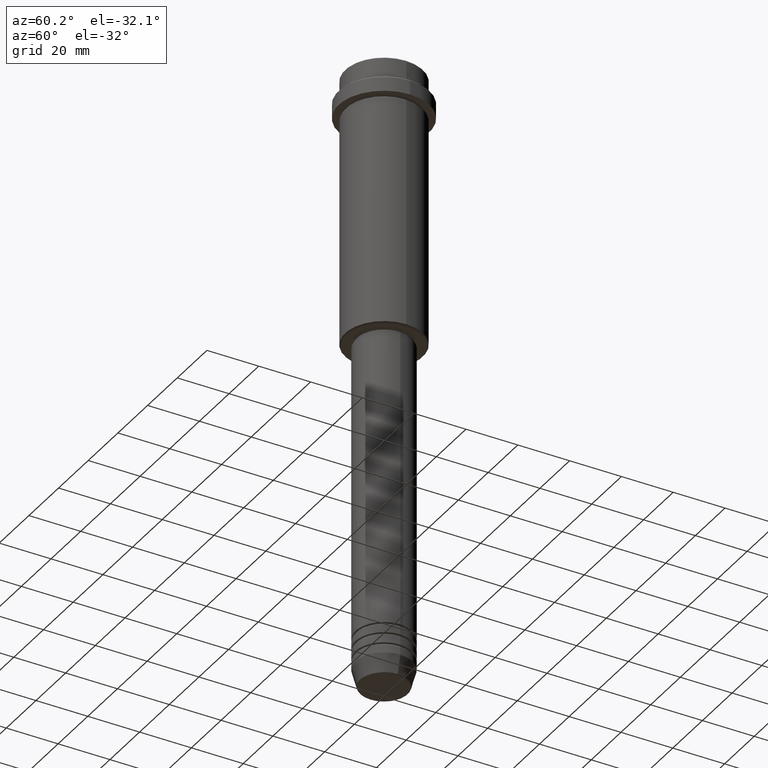
[diagram: clean part render]
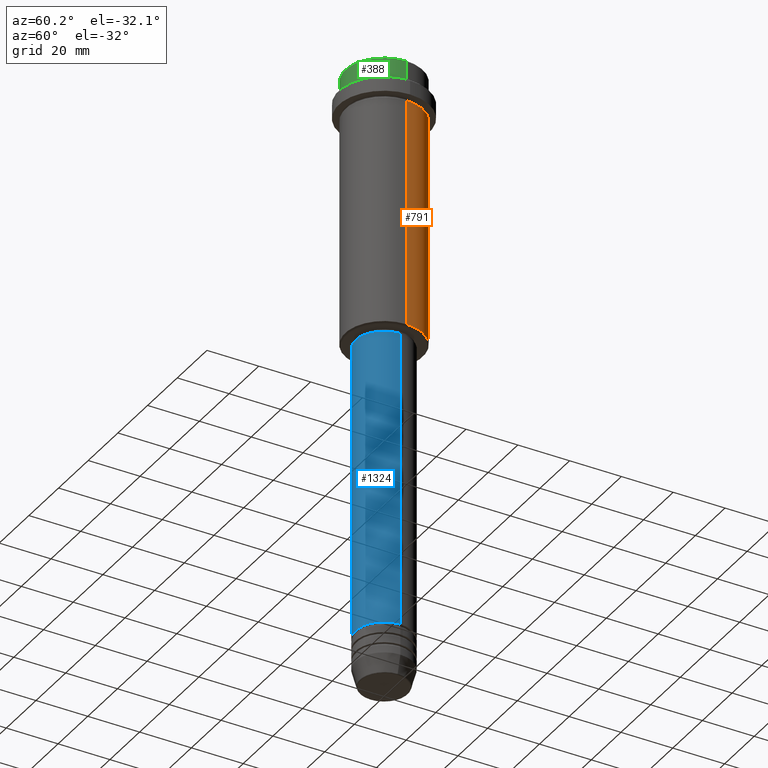
[diagram: same view with three faces highlighted in distinct colors, each labeled with its STEP entity id]
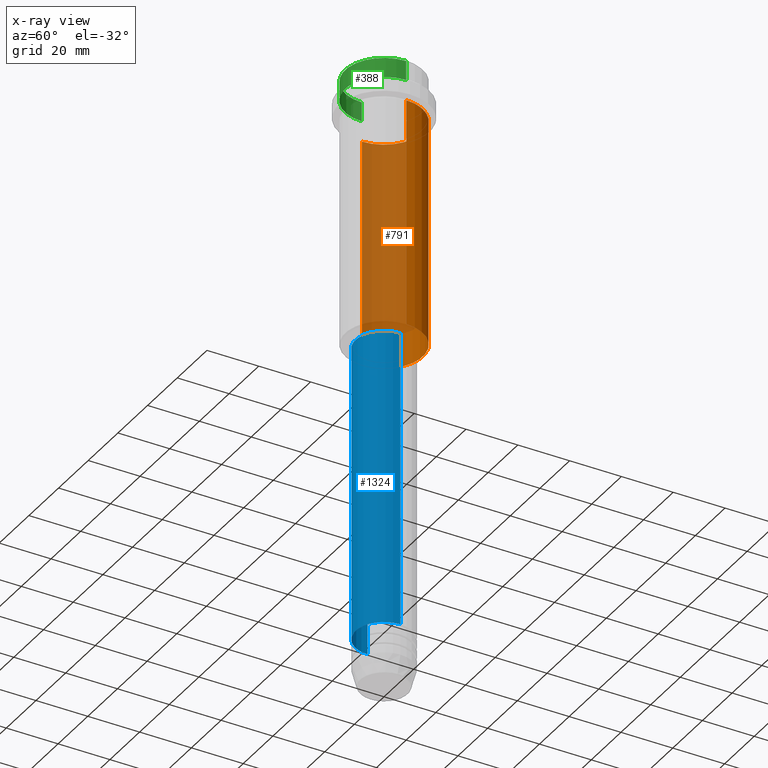
[diagram: x-ray of the same camera — body ghosted, the three highlighted faces saturated]
A machine part, auxiliary view with three faces highlighted in distinct colors.
The next image is the same camera in x-ray (body ghosted, the three faces saturated) — at least one of them is partly hidden behind the body in this view.
Their STEP definitions:

[orange] entity #791 — the highlighted cylindrical surface (partial cylindrical patch) has radius 15 mm, axis along (-0, -0, 1).
#29 = CARTESIAN_POINT ( 'NONE',  ( 0.000000000000000000, 0.000000000000000000, -16.00000000000000000 ) ) ;
#32 = CARTESIAN_POINT ( 'NONE',  ( 15.00000000000000178, 0.000000000000000000, -16.00000000000000000 ) ) ;
#36 = CARTESIAN_POINT ( 'NONE',  ( -15.00000000000000000, 1.836970198721029589E-15, -104.4999999999999147 ) ) ;
#54 = AXIS2_PLACEMENT_3D ( 'NONE', #584, #475, #924 ) ;
#55 = EDGE_CURVE ( 'NONE', #277, #1284, #1322, .T. ) ;
#81 = ORIENTED_EDGE ( 'NONE', *, *, #1401, .F. ) ;
#215 = AXIS2_PLACEMENT_3D ( 'NONE', #29, #794, #589 ) ;
#277 = VERTEX_POINT ( 'NONE', #453 ) ;
#285 = ORIENTED_EDGE ( 'NONE', *, *, #1358, .F. ) ;
#303 = LINE ( 'NONE', #735, #1278 ) ;
#371 = CYLINDRICAL_SURFACE ( 'NONE', #54, 15.00000000000000000 ) ;
#409 = DIRECTION ( 'NONE',  ( -0.000000000000000000, -0.000000000000000000, 1.000000000000000000 ) ) ;
#453 = CARTESIAN_POINT ( 'NONE',  ( 15.00000000000000000, 0.000000000000000000, -104.4999999999999147 ) ) ;
#475 = DIRECTION ( 'NONE',  ( -0.000000000000000000, -0.000000000000000000, 1.000000000000000000 ) ) ;
#528 = DIRECTION ( 'NONE',  ( -0.000000000000000000, -0.000000000000000000, 1.000000000000000000 ) ) ;
#584 = CARTESIAN_POINT ( 'NONE',  ( 0.000000000000000000, 0.000000000000000000, 0.000000000000000000 ) ) ;
#589 = DIRECTION ( 'NONE',  ( 1.000000000000000000, 0.000000000000000000, 0.000000000000000000 ) ) ;
#607 = VERTEX_POINT ( 'NONE', #959 ) ;
#611 = EDGE_CURVE ( 'NONE', #1284, #607, #838, .T. ) ;
#700 = FACE_OUTER_BOUND ( 'NONE', #1114, .T. ) ;
#722 = AXIS2_PLACEMENT_3D ( 'NONE', #1173, #528, #1056 ) ;
#735 = CARTESIAN_POINT ( 'NONE',  ( 15.00000000000000000, 0.000000000000000000, 0.000000000000000000 ) ) ;
#791 = ADVANCED_FACE ( 'NONE', ( #700 ), #371, .T. ) ;
#794 = DIRECTION ( 'NONE',  ( -0.000000000000000000, -0.000000000000000000, 1.000000000000000000 ) ) ;
#825 = CARTESIAN_POINT ( 'NONE',  ( -15.00000000000000000, 1.836970198721029589E-15, 0.000000000000000000 ) ) ;
#838 = LINE ( 'NONE', #825, #1259 ) ;
#877 = VERTEX_POINT ( 'NONE', #32 ) ;
#924 = DIRECTION ( 'NONE',  ( 1.000000000000000000, 0.000000000000000000, 0.000000000000000000 ) ) ;
#934 = DIRECTION ( 'NONE',  ( -0.000000000000000000, -0.000000000000000000, 1.000000000000000000 ) ) ;
#959 = CARTESIAN_POINT ( 'NONE',  ( -15.00000000000000355, 1.836970198721029983E-15, -16.00000000000000000 ) ) ;
#1056 = DIRECTION ( 'NONE',  ( -1.000000000000000000, 0.000000000000000000, 0.000000000000000000 ) ) ;
#1072 = CIRCLE ( 'NONE', #215, 15.00000000000000178 ) ;
#1100 = ORIENTED_EDGE ( 'NONE', *, *, #55, .T. ) ;
#1114 = EDGE_LOOP ( 'NONE', ( #1100, #1332, #285, #81 ) ) ;
#1173 = CARTESIAN_POINT ( 'NONE',  ( 0.000000000000000000, 0.000000000000000000, -104.4999999999999147 ) ) ;
#1259 = VECTOR ( 'NONE', #934, 1000.000000000000000 ) ;
#1278 = VECTOR ( 'NONE', #409, 1000.000000000000000 ) ;
#1284 = VERTEX_POINT ( 'NONE', #36 ) ;
#1322 = CIRCLE ( 'NONE', #722, 15.00000000000000000 ) ;
#1332 = ORIENTED_EDGE ( 'NONE', *, *, #611, .T. ) ;
#1358 = EDGE_CURVE ( 'NONE', #877, #607, #1072, .T. ) ;
#1401 = EDGE_CURVE ( 'NONE', #277, #877, #303, .T. ) ;

[blue] entity #1324 — the highlighted cylindrical surface (edge-blend (fillet) strip) has radius 11 mm, axis along (-0, -0, 1).
#4 = DIRECTION ( 'NONE',  ( 1.000000000000000000, 0.000000000000000000, 0.000000000000000000 ) ) ;
#5 = VERTEX_POINT ( 'NONE', #140 ) ;
#20 = CIRCLE ( 'NONE', #211, 10.99999999999999822 ) ;
#99 = ORIENTED_EDGE ( 'NONE', *, *, #505, .T. ) ;
#102 = ORIENTED_EDGE ( 'NONE', *, *, #745, .F. ) ;
#140 = CARTESIAN_POINT ( 'NONE',  ( -10.99999999999999822, 1.347111479062088207E-15, -106.0000000000000142 ) ) ;
#211 = AXIS2_PLACEMENT_3D ( 'NONE', #996, #562, #4 ) ;
#261 = DIRECTION ( 'NONE',  ( -0.000000000000000000, -0.000000000000000000, 1.000000000000000000 ) ) ;
#282 = EDGE_CURVE ( 'NONE', #348, #989, #668, .T. ) ;
#304 = DIRECTION ( 'NONE',  ( -0.000000000000000000, -0.000000000000000000, 1.000000000000000000 ) ) ;
#338 = CARTESIAN_POINT ( 'NONE',  ( -11.00000000000000000, 1.347111479062088405E-15, -220.9999999999999432 ) ) ;
#348 = VERTEX_POINT ( 'NONE', #1298 ) ;
#438 = CARTESIAN_POINT ( 'NONE',  ( 11.00000000000000000, 0.000000000000000000, 0.000000000000000000 ) ) ;
#505 = EDGE_CURVE ( 'NONE', #702, #348, #1123, .T. ) ;
#523 = EDGE_CURVE ( 'NONE', #702, #5, #626, .T. ) ;
#562 = DIRECTION ( 'NONE',  ( -0.000000000000000000, -0.000000000000000000, 1.000000000000000000 ) ) ;
#602 = AXIS2_PLACEMENT_3D ( 'NONE', #995, #261, #1014 ) ;
#626 = LINE ( 'NONE', #743, #673 ) ;
#668 = LINE ( 'NONE', #438, #946 ) ;
#673 = VECTOR ( 'NONE', #833, 1000.000000000000000 ) ;
#678 = ORIENTED_EDGE ( 'NONE', *, *, #282, .T. ) ;
#686 = CYLINDRICAL_SURFACE ( 'NONE', #602, 11.00000000000000000 ) ;
#702 = VERTEX_POINT ( 'NONE', #338 ) ;
#743 = CARTESIAN_POINT ( 'NONE',  ( -11.00000000000000000, 1.347111479062088405E-15, 0.000000000000000000 ) ) ;
#745 = EDGE_CURVE ( 'NONE', #5, #989, #20, .T. ) ;
#833 = DIRECTION ( 'NONE',  ( -0.000000000000000000, -0.000000000000000000, 1.000000000000000000 ) ) ;
#850 = AXIS2_PLACEMENT_3D ( 'NONE', #1117, #304, #1054 ) ;
#882 = DIRECTION ( 'NONE',  ( -0.000000000000000000, -0.000000000000000000, 1.000000000000000000 ) ) ;
#905 = FACE_OUTER_BOUND ( 'NONE', #1349, .T. ) ;
#946 = VECTOR ( 'NONE', #882, 1000.000000000000000 ) ;
#989 = VERTEX_POINT ( 'NONE', #1156 ) ;
#995 = CARTESIAN_POINT ( 'NONE',  ( 0.000000000000000000, 0.000000000000000000, 0.000000000000000000 ) ) ;
#996 = CARTESIAN_POINT ( 'NONE',  ( 0.000000000000000000, 0.000000000000000000, -106.0000000000000142 ) ) ;
#998 = ORIENTED_EDGE ( 'NONE', *, *, #523, .F. ) ;
#1014 = DIRECTION ( 'NONE',  ( 1.000000000000000000, 0.000000000000000000, 0.000000000000000000 ) ) ;
#1054 = DIRECTION ( 'NONE',  ( 1.000000000000000000, 0.000000000000000000, 0.000000000000000000 ) ) ;
#1117 = CARTESIAN_POINT ( 'NONE',  ( 0.000000000000000000, 0.000000000000000000, -220.9999999999999432 ) ) ;
#1123 = CIRCLE ( 'NONE', #850, 11.00000000000000000 ) ;
#1156 = CARTESIAN_POINT ( 'NONE',  ( 10.99999999999999822, 0.000000000000000000, -106.0000000000000142 ) ) ;
#1298 = CARTESIAN_POINT ( 'NONE',  ( 11.00000000000000000, 0.000000000000000000, -220.9999999999999432 ) ) ;
#1324 = ADVANCED_FACE ( 'NONE', ( #905 ), #686, .T. ) ;
#1349 = EDGE_LOOP ( 'NONE', ( #998, #99, #678, #102 ) ) ;

[green] entity #388 — the highlighted cylindrical surface (partial cylindrical patch) has radius 15 mm, axis along (-0, -0, 1).
#10 = EDGE_CURVE ( 'NONE', #658, #652, #48, .T. ) ;
#16 = LINE ( 'NONE', #592, #1393 ) ;
#21 = AXIS2_PLACEMENT_3D ( 'NONE', #685, #1144, #254 ) ;
#34 = DIRECTION ( 'NONE',  ( 1.000000000000000000, 0.000000000000000000, 0.000000000000000000 ) ) ;
#48 = CIRCLE ( 'NONE', #21, 15.00000000000000000 ) ;
#212 = VERTEX_POINT ( 'NONE', #630 ) ;
#228 = EDGE_CURVE ( 'NONE', #474, #212, #1258, .T. ) ;
#254 = DIRECTION ( 'NONE',  ( 1.000000000000000000, 0.000000000000000000, 0.000000000000000000 ) ) ;
#270 = DIRECTION ( 'NONE',  ( -0.000000000000000000, -0.000000000000000000, 1.000000000000000000 ) ) ;
#352 = CARTESIAN_POINT ( 'NONE',  ( 15.00000000000000000, 0.000000000000000000, -7.999999999999998224 ) ) ;
#388 = ADVANCED_FACE ( 'NONE', ( #715 ), #1142, .T. ) ;
#400 = EDGE_CURVE ( 'NONE', #658, #212, #16, .T. ) ;
#474 = VERTEX_POINT ( 'NONE', #908 ) ;
#541 = DIRECTION ( 'NONE',  ( -0.000000000000000000, -0.000000000000000000, 1.000000000000000000 ) ) ;
#592 = CARTESIAN_POINT ( 'NONE',  ( -15.00000000000000000, 1.836970198721029589E-15, 0.000000000000000000 ) ) ;
#603 = AXIS2_PLACEMENT_3D ( 'NONE', #1248, #270, #34 ) ;
#630 = CARTESIAN_POINT ( 'NONE',  ( -15.00000000000000000, 1.836970198721029589E-15, -0.5000000000000108802 ) ) ;
#652 = VERTEX_POINT ( 'NONE', #352 ) ;
#656 = LINE ( 'NONE', #1397, #1089 ) ;
#658 = VERTEX_POINT ( 'NONE', #980 ) ;
#685 = CARTESIAN_POINT ( 'NONE',  ( 0.000000000000000000, 0.000000000000000000, -7.999999999999998224 ) ) ;
#715 = FACE_OUTER_BOUND ( 'NONE', #1102, .T. ) ;
#772 = EDGE_CURVE ( 'NONE', #652, #474, #656, .T. ) ;
#873 = CARTESIAN_POINT ( 'NONE',  ( 0.000000000000000000, 0.000000000000000000, -0.5000000000000108802 ) ) ;
#897 = DIRECTION ( 'NONE',  ( -0.000000000000000000, -0.000000000000000000, 1.000000000000000000 ) ) ;
#908 = CARTESIAN_POINT ( 'NONE',  ( 15.00000000000000000, 0.000000000000000000, -0.5000000000000108802 ) ) ;
#911 = ORIENTED_EDGE ( 'NONE', *, *, #10, .T. ) ;
#970 = DIRECTION ( 'NONE',  ( 1.000000000000000000, 0.000000000000000000, 0.000000000000000000 ) ) ;
#974 = DIRECTION ( 'NONE',  ( 0.000000000000000000, 0.000000000000000000, -1.000000000000000000 ) ) ;
#980 = CARTESIAN_POINT ( 'NONE',  ( -15.00000000000000000, 1.836970198721029589E-15, -7.999999999999998224 ) ) ;
#983 = ORIENTED_EDGE ( 'NONE', *, *, #400, .F. ) ;
#1011 = AXIS2_PLACEMENT_3D ( 'NONE', #873, #974, #970 ) ;
#1031 = ORIENTED_EDGE ( 'NONE', *, *, #772, .T. ) ;
#1089 = VECTOR ( 'NONE', #541, 1000.000000000000000 ) ;
#1102 = EDGE_LOOP ( 'NONE', ( #983, #911, #1031, #1121 ) ) ;
#1121 = ORIENTED_EDGE ( 'NONE', *, *, #228, .T. ) ;
#1142 = CYLINDRICAL_SURFACE ( 'NONE', #603, 15.00000000000000000 ) ;
#1144 = DIRECTION ( 'NONE',  ( -0.000000000000000000, -0.000000000000000000, 1.000000000000000000 ) ) ;
#1248 = CARTESIAN_POINT ( 'NONE',  ( 0.000000000000000000, 0.000000000000000000, 0.000000000000000000 ) ) ;
#1258 = CIRCLE ( 'NONE', #1011, 15.00000000000000000 ) ;
#1393 = VECTOR ( 'NONE', #897, 1000.000000000000000 ) ;
#1397 = CARTESIAN_POINT ( 'NONE',  ( 15.00000000000000000, 0.000000000000000000, 0.000000000000000000 ) ) ;